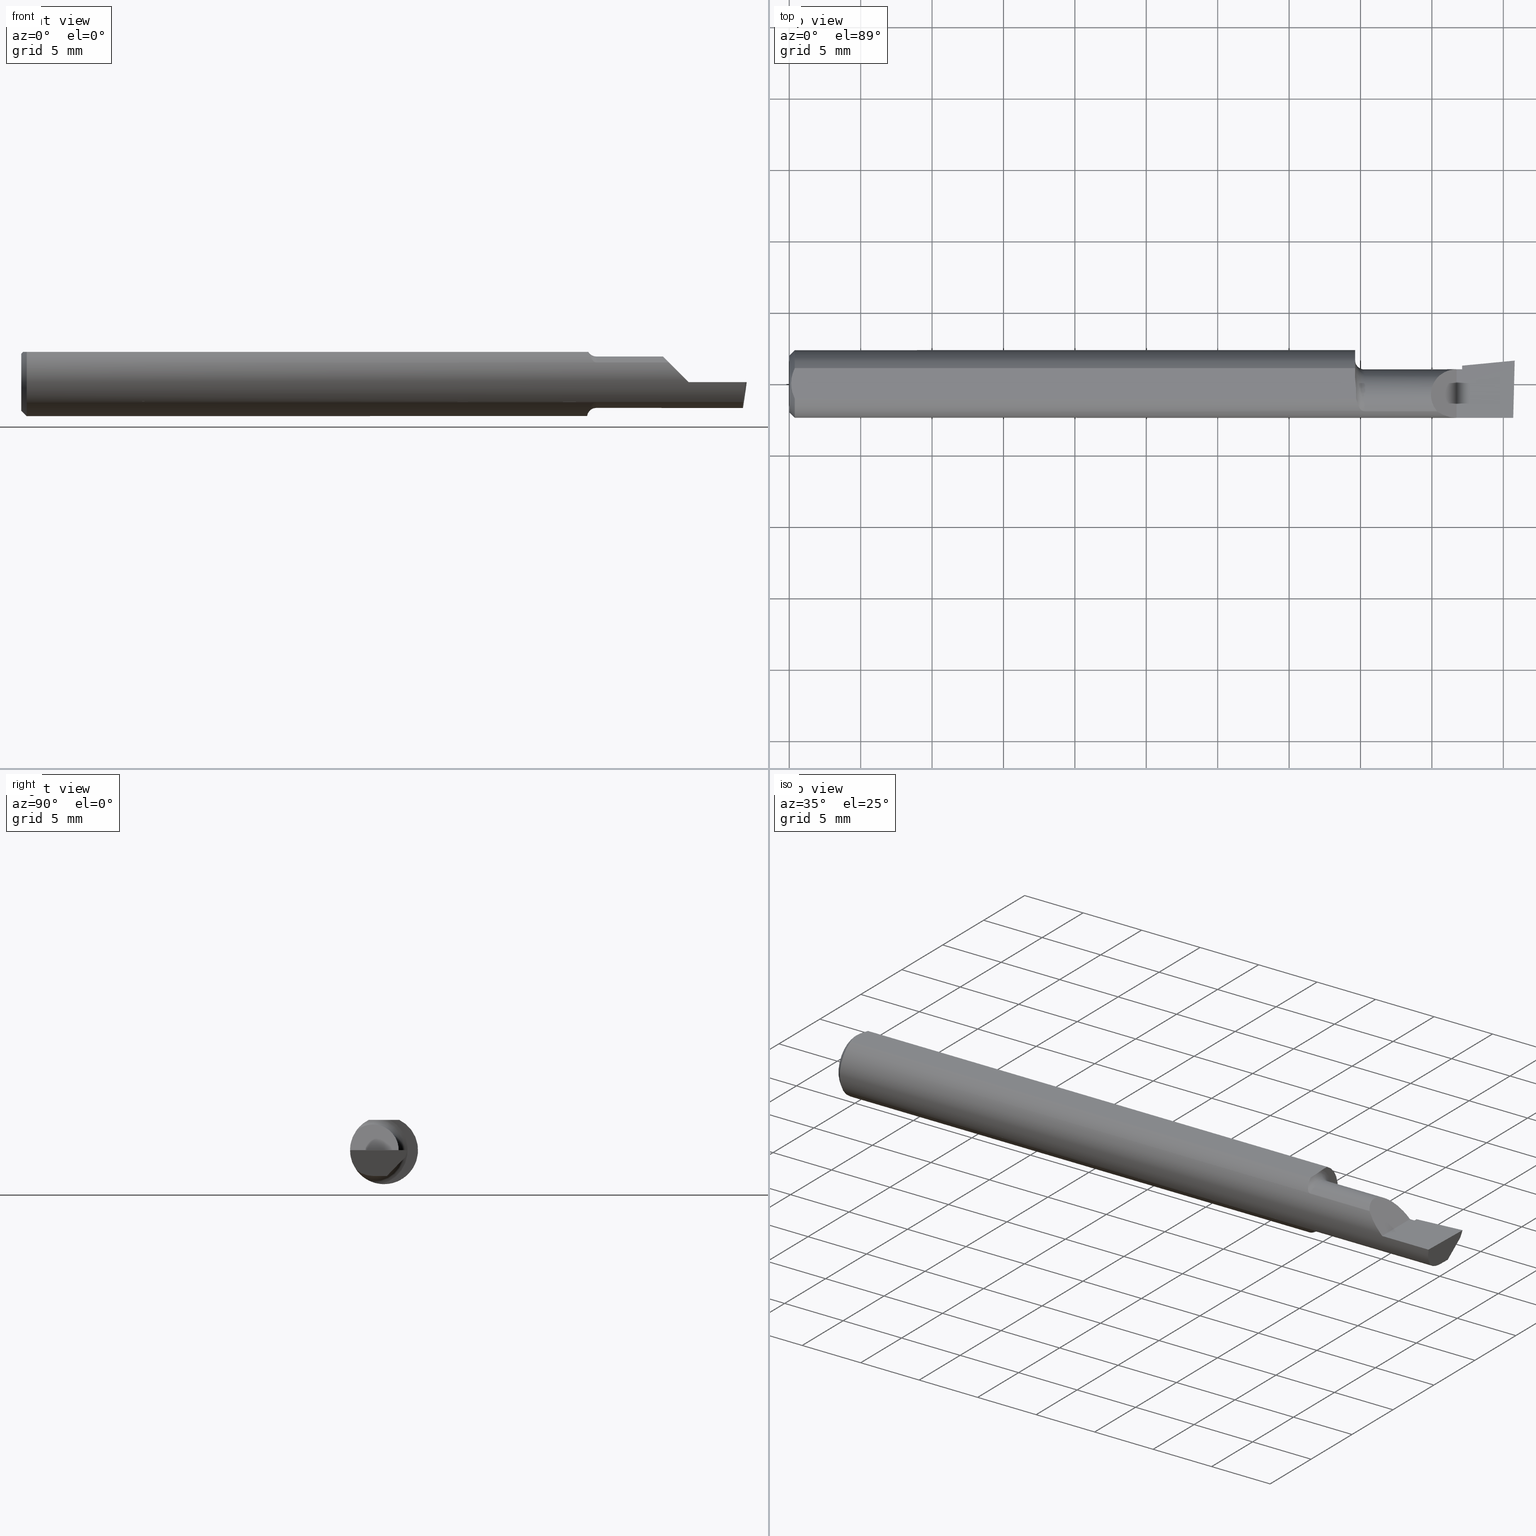
[diagram: canonical four-view strip — front | top / right | iso, engineering-drawing reading convention]
A machine part, canonical four-view strip (front | top / right | iso — engineering-drawing reading convention). The complete STEP part file that produces these views, byte-faithful:
ISO-10303-21;
HEADER;
FILE_DESCRIPTION (( 'STEP AP203' ),
    '1' );
FILE_NAME ('217333-B160400.STEP',
    '2024-04-23T17:12:56',
    ( '' ),
    ( '' ),
    'SwSTEP 2.0',
    'SolidWorks 2022',
    '' );
FILE_SCHEMA (( 'CONFIG_CONTROL_DESIGN' ));
ENDSEC;

DATA;
#1 = FACE_OUTER_BOUND ( 'NONE', #57, .T. ) ;
#2 = CARTESIAN_POINT ( 'NONE',  ( 1.854999999999999982, -0.03060000000000022424, 0.000000000000000000 ) ) ;
#3 = EDGE_CURVE ( 'NONE', #610, #514, #179, .T. ) ;
#4 = VERTEX_POINT ( 'NONE', #325 ) ;
#5 = LINE ( 'NONE', #428, #269 ) ;
#6 = DIRECTION ( 'NONE',  ( -1.000000000000000000, -0.000000000000000000, -0.000000000000000000 ) ) ;
#7 = CC_DESIGN_PERSON_AND_ORGANIZATION_ASSIGNMENT ( #105, #100, ( #80 ) ) ;
#8 = AXIS2_PLACEMENT_3D ( 'NONE', #596, #549, #62 ) ;
#9 = COORDINATED_UNIVERSAL_TIME_OFFSET ( 8, 0, .BEHIND. ) ;
#10 = PERSON ( 'UNSPECIFIED', 'UNSPECIFIED', 'UNSPECIFIED', ('UNSPECIFIED'), ('UNSPECIFIED'), ('UNSPECIFIED') ) ;
#11 = CARTESIAN_POINT ( 'NONE',  ( 1.840000000000000080, 0.04039999999999989433, 1.959434878635762025E-17 ) ) ;
#12 = ADVANCED_FACE ( 'NONE', ( #523 ), #560, .T. ) ;
#13 =( NAMED_UNIT ( * ) SI_UNIT ( $, .STERADIAN. ) SOLID_ANGLE_UNIT ( ) );
#14 = FACE_OUTER_BOUND ( 'NONE', #354, .T. ) ;
#15 = ORIENTED_EDGE ( 'NONE', *, *, #455, .T. ) ;
#16 = ADVANCED_FACE ( 'NONE', ( #328 ), #369, .T. ) ;
#17 = CARTESIAN_POINT ( 'NONE',  ( 0.005975039161239527503, -0.01453776427033146371, 0.08359999999999996600 ) ) ;
#18 = EDGE_LOOP ( 'NONE', ( #312, #607 ) ) ;
#19 = CARTESIAN_POINT ( 'NONE',  ( 1.991772787678609324, -0.2497845628634190740, -6.377686106282058433E-17 ) ) ;
#20 = ORIENTED_EDGE ( 'NONE', *, *, #180, .F. ) ;
#21 = CARTESIAN_POINT ( 'NONE',  ( 1.854999999999999982, 0.05043808801135910014, 1.028711510114199084E-15 ) ) ;
#22 = EDGE_CURVE ( 'NONE', #503, #380, #521, .T. ) ;
#23 = ORIENTED_EDGE ( 'NONE', *, *, #368, .F. ) ;
#24 = DIRECTION ( 'NONE',  ( 0.9953961983671787417, 0.09584575252022466130, -5.467869873542577569E-16 ) ) ;
#25 = VERTEX_POINT ( 'NONE', #280 ) ;
#26 = CARTESIAN_POINT ( 'NONE',  ( 1.577524991500365292, -0.07354719313698328265, 0.05791404302443246138 ) ) ;
#27 = VECTOR ( 'NONE', #6, 39.37007874015748143 ) ;
#28 = CARTESIAN_POINT ( 'NONE',  ( 1.560000000000000053, 0.06539999999999997204, 0.000000000000000000 ) ) ;
#29 = DATE_AND_TIME ( #253, #603 ) ;
#30 = CARTESIAN_POINT ( 'NONE',  ( 1.572372878085588122, -0.06813570069660565554, -0.06426486695182659359 ) ) ;
#31 = EDGE_LOOP ( 'NONE', ( #617, #308, #176, #117, #277, #262 ) ) ;
#32 = EDGE_CURVE ( 'NONE', #598, #380, #322, .T. ) ;
#33 = CARTESIAN_POINT ( 'NONE',  ( 1.562798152027436771, -0.01771129213186550116, 0.08360000000000003539 ) ) ;
#34 = ORIENTED_EDGE ( 'NONE', *, *, #318, .F. ) ;
#35 = CARTESIAN_POINT ( 'NONE',  ( 1.559999999999999165, 0.006742283091807301301, 0.08360000000000003539 ) ) ;
#36 = VERTEX_POINT ( 'NONE', #202 ) ;
#37 = AXIS2_PLACEMENT_3D ( 'NONE', #146, #197, #537 ) ;
#38 = VECTOR ( 'NONE', #242, 39.37007874015748143 ) ;
#39 = PLANE ( 'NONE',  #351 ) ;
#40 = CARTESIAN_POINT ( 'NONE',  ( 1.988791645263412011, -0.03060000000000022424, -0.07100000000000021572 ) ) ;
#41 = DIRECTION ( 'NONE',  ( 0.02617694830786939167, 0.9996573249755573709, -4.246274422243602914E-17 ) ) ;
#42 = CARTESIAN_POINT ( 'NONE',  ( 1.995862624392068074, -0.09360000000000009979, -6.605666309584466665E-17 ) ) ;
#43 = CARTESIAN_POINT ( 'NONE',  ( 1.560000000000000053, 0.01659152466280376659, 0.08360000000000000764 ) ) ;
#44 = CARTESIAN_POINT ( 'NONE',  ( 0.000000000000000000, -0.03060000000000023118, 0.000000000000000000 ) ) ;
#45 = AXIS2_PLACEMENT_3D ( 'NONE', #339, #384, #578 ) ;
#46 = DIRECTION ( 'NONE',  ( 1.000000000000000000, 4.268512490100411279E-18, 0.000000000000000000 ) ) ;
#47 = CARTESIAN_POINT ( 'NONE',  ( 1.785481776797905207, -0.07608366013071832246, 0.05451822320209408906 ) ) ;
#48 = DIRECTION ( 'NONE',  ( 1.000000000000000000, 0.000000000000000000, 0.000000000000000000 ) ) ;
#49 = ADVANCED_FACE ( 'NONE', ( #442 ), #190, .F. ) ;
#50 = CARTESIAN_POINT ( 'NONE',  ( 1.584999999999999964, -0.03060000000000022424, 0.000000000000000000 ) ) ;
#51 = ORIENTED_EDGE ( 'NONE', *, *, #93, .F. ) ;
#52 = CARTESIAN_POINT ( 'NONE',  ( 1.560000000000000053, 0.000000000000000000, 0.000000000000000000 ) ) ;
#53 = DIRECTION ( 'NONE',  ( 0.000000000000000000, -1.000000000000000000, 0.000000000000000000 ) ) ;
#54 = ORIENTED_EDGE ( 'NONE', *, *, #414, .F. ) ;
#55 = VECTOR ( 'NONE', #24, 39.37007874015748143 ) ;
#56 = CARTESIAN_POINT ( 'NONE',  ( 0.009539353699420834165, -0.02875682547511369813, 0.08360000000000003539 ) ) ;
#57 = EDGE_LOOP ( 'NONE', ( #205, #144 ) ) ;
#58 = CC_DESIGN_PERSON_AND_ORGANIZATION_ASSIGNMENT ( #108, #494, ( #80 ) ) ;
#59 = CARTESIAN_POINT ( 'NONE',  ( 2.000000000000004441, 0.06440000000001341873, 4.273634705088531894E-14 ) ) ;
#60 = VERTEX_POINT ( 'NONE', #483 ) ;
#61 = APPROVAL_STATUS ( 'not_yet_approved' ) ;
#62 = DIRECTION ( 'NONE',  ( 4.268512490100411279E-18, -1.000000000000000000, 0.000000000000000000 ) ) ;
#63 = ORIENTED_EDGE ( 'NONE', *, *, #252, .F. ) ;
#64 = VECTOR ( 'NONE', #431, 39.37007874015748143 ) ;
#65 = EDGE_CURVE ( 'NONE', #401, #500, #538, .T. ) ;
#66 = PLANE ( 'NONE',  #8 ) ;
#67 = ORIENTED_EDGE ( 'NONE', *, *, #275, .F. ) ;
#68 = LINE ( 'NONE', #457, #55 ) ;
#69 = EDGE_CURVE ( 'NONE', #456, #25, #239, .T. ) ;
#70 = VERTEX_POINT ( 'NONE', #11 ) ;
#71 = CARTESIAN_POINT ( 'NONE',  ( 1.584999999999999964, -0.07608366013071794776, 0.05451822320209439438 ) ) ;
#72 = CARTESIAN_POINT ( 'NONE',  ( 1.988641161029047311, -0.06318680184005830147, -0.06527786071030769466 ) ) ;
#73 = APPROVAL_DATE_TIME ( #156, #231 ) ;
#74 = CARTESIAN_POINT ( 'NONE',  ( 1.854999999999999982, 0.04429519371539571149, -0.02000000000000000042 ) ) ;
#75 = CIRCLE ( 'NONE', #168, 0.09360000000000001652 ) ;
#76 = CARTESIAN_POINT ( 'NONE',  ( 1.572718485147075684, -0.06880529263944749896, 0.06356579742164542024 ) ) ;
#77 = ORIENTED_EDGE ( 'NONE', *, *, #358, .T. ) ;
#78 = DIRECTION ( 'NONE',  ( -1.000000000000000000, -0.000000000000000000, -0.000000000000000000 ) ) ;
#79 = CARTESIAN_POINT ( 'NONE',  ( 0.000000000000000000, 0.000000000000000000, 0.000000000000000000 ) ) ;
#80 = PRODUCT_DEFINITION_FORMATION_WITH_SPECIFIED_SOURCE ( 'ANY', '', #562, .NOT_KNOWN. ) ;
#81 = CARTESIAN_POINT ( 'NONE',  ( 1.563154437539956199, -0.02258334521707493561, 0.08360000000000000764 ) ) ;
#82 = ORIENTED_EDGE ( 'NONE', *, *, #583, .F. ) ;
#83 = AXIS2_PLACEMENT_3D ( 'NONE', #232, #118, #173 ) ;
#84 = VECTOR ( 'NONE', #590, 39.37007874015748143 ) ;
#85 = LINE ( 'NONE', #333, #528 ) ;
#86 = CARTESIAN_POINT ( 'NONE',  ( 2.000000000000000000, -0.2500000000000000555, -6.829619984160658046E-17 ) ) ;
#87 = DIRECTION ( 'NONE',  ( 4.268512490100411279E-18, -1.000000000000000000, 0.000000000000000000 ) ) ;
#88 = DIRECTION ( 'NONE',  ( 0.000000000000000000, 1.000000000000000000, -4.268512490100411895E-17 ) ) ;
#89 = EDGE_LOOP ( 'NONE', ( #446, #416, #223, #452 ) ) ;
#90 = EDGE_CURVE ( 'NONE', #493, #36, #423, .T. ) ;
#91 = CARTESIAN_POINT ( 'NONE',  ( 1.989797099917948842, 0.007796764149783521822, -0.07100000000000021572 ) ) ;
#92 = LINE ( 'NONE', #244, #84 ) ;
#93 = EDGE_CURVE ( 'NONE', #102, #619, #448, .T. ) ;
#94 = CARTESIAN_POINT ( 'NONE',  ( 0.005000000000000237761, 1.025183009042025117E-17, 0.08360000000000000764 ) ) ;
#95 = DIRECTION ( 'NONE',  ( 0.1240019227989323375, 0.3022330132596648400, 0.9451342385281314984 ) ) ;
#96 = DIRECTION ( 'NONE',  ( 0.000000000000000000, 1.000000000000000000, 0.000000000000000000 ) ) ;
#97 = LINE ( 'NONE', #294, #476 ) ;
#98 = ORIENTED_EDGE ( 'NONE', *, *, #338, .F. ) ;
#99 = LOCAL_TIME ( 10, 12, 56.00000000000000000, #9 ) ;
#100 = PERSON_AND_ORGANIZATION_ROLE ( 'creator' ) ;
#101 = DIRECTION ( 'NONE',  ( 0.000000000000000000, -1.189000693621284344E-16, -1.000000000000000000 ) ) ;
#102 = VERTEX_POINT ( 'NONE', #429 ) ;
#103 = CIRCLE ( 'NONE', #240, 0.09360000000000001652 ) ;
#104 = AXIS2_PLACEMENT_3D ( 'NONE', #204, #113, #407 ) ;
#105 = PERSON_AND_ORGANIZATION ( #10, #133 ) ;
#106 = CARTESIAN_POINT ( 'NONE',  ( 5.659797890829555466E-31, -0.09359999999999998876, 1.030335658007946046E-15 ) ) ;
#107 = ORIENTED_EDGE ( 'NONE', *, *, #455, .F. ) ;
#108 = PERSON_AND_ORGANIZATION ( #10, #133 ) ;
#109 = LINE ( 'NONE', #399, #556 ) ;
#110 = EDGE_LOOP ( 'NONE', ( #114, #122, #600, #82, #554, #420, #605, #245, #468, #288, #54, #411 ) ) ;
#111 = EDGE_CURVE ( 'NONE', #60, #610, #198, .T. ) ;
#112 = DIRECTION ( 'NONE',  ( 0.000000000000000000, 0.000000000000000000, 1.000000000000000000 ) ) ;
#113 = DIRECTION ( 'NONE',  ( -0.7071067811865433539, 0.000000000000000000, -0.7071067811865516806 ) ) ;
#114 = ORIENTED_EDGE ( 'NONE', *, *, #32, .F. ) ;
#115 = APPROVAL ( #498, 'UNSPECIFIED' ) ;
#116 = FACE_OUTER_BOUND ( 'NONE', #570, .T. ) ;
#117 = ORIENTED_EDGE ( 'NONE', *, *, #69, .F. ) ;
#118 = DIRECTION ( 'NONE',  ( -1.000000000000000000, -4.268512490100411279E-18, -0.000000000000000000 ) ) ;
#119 = EDGE_CURVE ( 'NONE', #602, #612, #92, .T. ) ;
#120 = ORIENTED_EDGE ( 'NONE', *, *, #389, .T. ) ;
#121 = LINE ( 'NONE', #567, #462 ) ;
#122 = ORIENTED_EDGE ( 'NONE', *, *, #310, .T. ) ;
#123 = DIRECTION ( 'NONE',  ( 1.000000000000000000, 0.000000000000000000, 0.000000000000000000 ) ) ;
#124 = UNCERTAINTY_MEASURE_WITH_UNIT (LENGTH_MEASURE( 1.000000000000000082E-05 ), #501, 'distance_accuracy_value', 'NONE');
#125 = CARTESIAN_POINT ( 'NONE',  ( 1.563209978243261578, -0.03721340473516416419, 0.08360000000000000764 ) ) ;
#126 = AXIS2_PLACEMENT_3D ( 'NONE', #86, #394, #143 ) ;
#127 = ORIENTED_EDGE ( 'NONE', *, *, #158, .F. ) ;
#128 = CALENDAR_DATE ( 2024, 23, 4 ) ;
#129 = CARTESIAN_POINT ( 'NONE',  ( 1.566007506249286640, -0.05524264031795306923, -0.07589747771031254975 ) ) ;
#130 = DIRECTION ( 'NONE',  ( 0.9953961983671800740, 0.09584575252021028391, -2.116984158397002112E-18 ) ) ;
#131 = DIRECTION ( 'NONE',  ( -4.268512490100411279E-18, 1.000000000000000000, 2.344761903626518103E-33 ) ) ;
#132 = DIRECTION ( 'NONE',  ( 0.000000000000000000, 0.000000000000000000, 1.000000000000000000 ) ) ;
#133 = ORGANIZATION ( 'UNSPECIFIED', 'UNSPECIFIED', '' ) ;
#134 = DIRECTION ( 'NONE',  ( 0.000000000000000000, 0.000000000000000000, -1.000000000000000000 ) ) ;
#135 = DIRECTION ( 'NONE',  ( 1.000000000000000000, 4.268512490100411279E-18, 0.000000000000000000 ) ) ;
#136 = VECTOR ( 'NONE', #526, 39.37007874015748143 ) ;
#137 = AXIS2_PLACEMENT_3D ( 'NONE', #502, #258, #546 ) ;
#138 = DIRECTION ( 'NONE',  ( -1.000000000000000000, -0.000000000000000000, -0.000000000000000000 ) ) ;
#139 = CARTESIAN_POINT ( 'NONE',  ( 1.989625015145392917, -0.07608366013071821143, -0.05451822320209420702 ) ) ;
#140 = ADVANCED_FACE ( 'NONE', ( #331 ), #287, .F. ) ;
#141 = ORIENTED_EDGE ( 'NONE', *, *, #234, .T. ) ;
#142 = DIRECTION ( 'NONE',  ( -1.000000000000000000, -4.268512490100411279E-18, 0.000000000000000000 ) ) ;
#143 = DIRECTION ( 'NONE',  ( -1.000000000000000000, 0.000000000000000000, 5.493159289247764363E-16 ) ) ;
#144 = ORIENTED_EDGE ( 'NONE', *, *, #551, .T. ) ;
#145 = ADVANCED_FACE ( 'NONE', ( #531 ), #343, .T. ) ;
#146 = CARTESIAN_POINT ( 'NONE',  ( 0.000000000000000000, 0.000000000000000000, 0.000000000000000000 ) ) ;
#147 = CARTESIAN_POINT ( 'NONE',  ( 0.005000000000000237761, 1.025183009042025117E-17, 0.08360000000000000764 ) ) ;
#148 = AXIS2_PLACEMENT_3D ( 'NONE', #530, #48, #134 ) ;
#149 = CIRCLE ( 'NONE', #507, 0.07100000000000017408 ) ;
#150 = CARTESIAN_POINT ( 'NONE',  ( 1.854999999999999982, 0.05043808801135670622, 0.000000000000000000 ) ) ;
#151 = ORIENTED_EDGE ( 'NONE', *, *, #163, .T. ) ;
#152 = DIRECTION ( 'NONE',  ( -1.000000000000000000, 5.691349986800549142E-18, -0.000000000000000000 ) ) ;
#153 = CARTESIAN_POINT ( 'NONE',  ( 0.000000000000000000, 0.000000000000000000, 0.000000000000000000 ) ) ;
#154 = CARTESIAN_POINT ( 'NONE',  ( -3.030643867965640675E-19, 0.04039999999999995678, 1.030335658007946046E-15 ) ) ;
#155 = ORIENTED_EDGE ( 'NONE', *, *, #583, .T. ) ;
#156 = DATE_AND_TIME ( #398, #379 ) ;
#157 = CARTESIAN_POINT ( 'NONE',  ( 0.005000000000000228220, -0.007328888879231051229, 0.08359999999999999376 ) ) ;
#158 = EDGE_CURVE ( 'NONE', #25, #60, #260, .T. ) ;
#159 = VERTEX_POINT ( 'NONE', #247 ) ;
#160 = PERSON_AND_ORGANIZATION ( #10, #133 ) ;
#161 = LINE ( 'NONE', #263, #169 ) ;
#162 = ORIENTED_EDGE ( 'NONE', *, *, #293, .T. ) ;
#163 = EDGE_CURVE ( 'NONE', #471, #602, #576, .T. ) ;
#164 = CC_DESIGN_SECURITY_CLASSIFICATION ( #187, ( #80 ) ) ;
#165 = DIRECTION ( 'NONE',  ( -1.000000000000000000, -0.000000000000000000, -0.000000000000000000 ) ) ;
#166 = ORIENTED_EDGE ( 'NONE', *, *, #32, .T. ) ;
#167 = PRODUCT_DEFINITION_SHAPE ( 'NONE', 'NONE',  #341 ) ;
#168 = AXIS2_PLACEMENT_3D ( 'NONE', #284, #138, #581 ) ;
#169 = VECTOR ( 'NONE', #152, 39.37007874015748143 ) ;
#170 = CARTESIAN_POINT ( 'NONE',  ( 1.854999999999999982, 0.05043808801135670622, 0.000000000000000000 ) ) ;
#171 = ORIENTED_EDGE ( 'NONE', *, *, #414, .T. ) ;
#172 = CC_DESIGN_PERSON_AND_ORGANIZATION_ASSIGNMENT ( #344, #209, ( #562 ) ) ;
#173 = DIRECTION ( 'NONE',  ( 4.268512490100411279E-18, -1.000000000000000000, 0.000000000000000000 ) ) ;
#174 = ORIENTED_EDGE ( 'NONE', *, *, #180, .T. ) ;
#175 = DIRECTION ( 'NONE',  ( -1.000000000000000000, -0.000000000000000000, -0.000000000000000000 ) ) ;
#176 = ORIENTED_EDGE ( 'NONE', *, *, #188, .F. ) ;
#177 = MANIFOLD_SOLID_BREP ( 'Extrude7', #229 ) ;
#178 = DIRECTION ( 'NONE',  ( -1.000000000000000000, -4.268512490100411279E-18, -0.000000000000000000 ) ) ;
#179 = LINE ( 'NONE', #566, #300 ) ;
#180 = EDGE_CURVE ( 'NONE', #563, #212, #486, .T. ) ;
#181 = SHAPE_DEFINITION_REPRESENTATION ( #167, #213 ) ;
#182 = CARTESIAN_POINT ( 'NONE',  ( 0.01499999999999999771, 0.000000000000000000, -0.09360000000000001652 ) ) ;
#183 = DIRECTION ( 'NONE',  ( -1.000000000000000000, -0.000000000000000000, -0.000000000000000000 ) ) ;
#184 = EDGE_CURVE ( 'NONE', #4, #271, #149, .T. ) ;
#185 = CARTESIAN_POINT ( 'NONE',  ( 1.988799325593724632, -0.03030670001847553252, -0.07100000000000021572 ) ) ;
#186 = EDGE_LOOP ( 'NONE', ( #593, #508, #406, #408, #67, #314 ) ) ;
#187 = SECURITY_CLASSIFICATION ( '', '', #256 ) ;
#188 = EDGE_CURVE ( 'NONE', #25, #610, #97, .T. ) ;
#189 = CARTESIAN_POINT ( 'NONE',  ( 1.770398118553869304, 0.04039999999999996372, 0.06960188144613037309 ) ) ;
#190 = PLANE ( 'NONE',  #126 ) ;
#191 = AXIS2_PLACEMENT_3D ( 'NONE', #558, #78, #419 ) ;
#192 = CARTESIAN_POINT ( 'NONE',  ( 1.854999999999999982, 0.03291555154404722516, -0.03172971339384390160 ) ) ;
#193 = DIRECTION ( 'NONE',  ( -1.000000000000000000, -4.268512490100411279E-18, -0.000000000000000000 ) ) ;
#194 = ORIENTED_EDGE ( 'NONE', *, *, #252, .T. ) ;
#195 = PLANE ( 'NONE',  #37 ) ;
#196 = CARTESIAN_POINT ( 'NONE',  ( 1.991292915001084296, -0.08756847698997995144, -0.03849042825095487508 ) ) ;
#197 = DIRECTION ( 'NONE',  ( 1.000000000000000000, 0.000000000000000000, 0.000000000000000000 ) ) ;
#198 = LINE ( 'NONE', #334, #443 ) ;
#199 = AXIS2_PLACEMENT_3D ( 'NONE', #438, #539, #330 ) ;
#200 = EDGE_CURVE ( 'NONE', #371, #456, #109, .T. ) ;
#201 = CALENDAR_DATE ( 2024, 23, 4 ) ;
#202 = CARTESIAN_POINT ( 'NONE',  ( 1.560000000000000053, -0.007864705882352510113, -0.09326900021649256467 ) ) ;
#203 = PERSON_AND_ORGANIZATION ( #10, #133 ) ;
#204 = CARTESIAN_POINT ( 'NONE',  ( 1.840000000000000080, -0.2500000000000000555, 1.959434878635762025E-17 ) ) ;
#205 = ORIENTED_EDGE ( 'NONE', *, *, #368, .T. ) ;
#206 = ADVANCED_FACE ( 'NONE', ( #254 ), #66, .T. ) ;
#207 = PLANE ( 'NONE',  #104 ) ;
#208 = ORIENTED_EDGE ( 'NONE', *, *, #591, .T. ) ;
#209 = PERSON_AND_ORGANIZATION_ROLE ( 'design_owner' ) ;
#210 = DIRECTION ( 'NONE',  ( -0.02617694830786939167, -0.9996573249755573709, 1.459184416195897376E-17 ) ) ;
#211 = ADVANCED_FACE ( 'NONE', ( #304 ), #592, .F. ) ;
#212 = VERTEX_POINT ( 'NONE', #59 ) ;
#213 = ADVANCED_BREP_SHAPE_REPRESENTATION ( '217333-B160400', ( #177, #327 ), #295 ) ;
#214 = CARTESIAN_POINT ( 'NONE',  ( 1.840000000000000080, -0.2500000000000000555, 1.959434878635762025E-17 ) ) ;
#215 = ORIENTED_EDGE ( 'NONE', *, *, #65, .F. ) ;
#216 = LINE ( 'NONE', #297, #515 ) ;
#217 = EDGE_LOOP ( 'NONE', ( #267, #162, #510 ) ) ;
#218 = AXIS2_PLACEMENT_3D ( 'NONE', #473, #273, #470 ) ;
#219 = CARTESIAN_POINT ( 'NONE',  ( 1.581360941731893899, -0.07557034852506690215, -0.05524018594043181990 ) ) ;
#220 = VERTEX_POINT ( 'NONE', #21 ) ;
#221 = DATE_TIME_ROLE ( 'classification_date' ) ;
#222 = CARTESIAN_POINT ( 'NONE',  ( 1.568052623108272314, -0.06089616178095298704, -0.07140423527607867027 ) ) ;
#223 = ORIENTED_EDGE ( 'NONE', *, *, #298, .F. ) ;
#224 = CARTESIAN_POINT ( 'NONE',  ( 1.580753778368558793, -0.07537148234687023052, 0.05551905660761868172 ) ) ;
#225 = ADVANCED_FACE ( 'NONE', ( #116 ), #509, .F. ) ;
#226 = ORIENTED_EDGE ( 'NONE', *, *, #564, .T. ) ;
#227 = APPROVAL_DATE_TIME ( #469, #418 ) ;
#228 = CARTESIAN_POINT ( 'NONE',  ( 1.562861144841092953, -0.04209513036041401951, 0.08360000000000000764 ) ) ;
#229 = CLOSED_SHELL ( 'NONE', ( #481, #12, #49, #145, #140, #225, #613, #450, #211, #289, #609, #474, #430, #16, #206, #504, #405 ) ) ;
#230 = ORIENTED_EDGE ( 'NONE', *, *, #532, .T. ) ;
#231 = APPROVAL ( #61, 'UNSPECIFIED' ) ;
#232 = CARTESIAN_POINT ( 'NONE',  ( 1.584999999999999964, -0.03060000000000023118, 0.000000000000000000 ) ) ;
#233 = ORIENTED_EDGE ( 'NONE', *, *, #234, .F. ) ;
#234 = EDGE_CURVE ( 'NONE', #500, #471, #479, .T. ) ;
#235 = FACE_OUTER_BOUND ( 'NONE', #475, .T. ) ;
#236 = DIRECTION ( 'NONE',  ( -1.000000000000000000, -4.268512490100411279E-18, -0.000000000000000000 ) ) ;
#237 = EDGE_CURVE ( 'NONE', #212, #598, #250, .T. ) ;
#238 = DIRECTION ( 'NONE',  ( 1.000000000000000000, 4.268512490100411279E-18, 0.000000000000000000 ) ) ;
#239 = LINE ( 'NONE', #282, #38 ) ;
#240 = AXIS2_PLACEMENT_3D ( 'NONE', #348, #175, #513 ) ;
#241 = CARTESIAN_POINT ( 'NONE',  ( 1.995862624392068074, -0.09360000000000009979, -6.605666309584466665E-17 ) ) ;
#242 = DIRECTION ( 'NONE',  ( 2.972230601656782806E-18, -0.6963153109074924352, -0.7177360153954949196 ) ) ;
#243 = CARTESIAN_POINT ( 'NONE',  ( 1.854999999999999982, 0.04039999999999999841, 1.030335658007946440E-15 ) ) ;
#244 = CARTESIAN_POINT ( 'NONE',  ( 0.000000000000000000, 0.04209513035969837669, 0.08360000000000000764 ) ) ;
#245 = ORIENTED_EDGE ( 'NONE', *, *, #349, .F. ) ;
#246 = LENGTH_MEASURE_WITH_UNIT ( LENGTH_MEASURE( 0.02539999999999999897 ), #417 );
#247 = CARTESIAN_POINT ( 'NONE',  ( 0.000000000000000000, 0.000000000000000000, -0.07859999999999965625 ) ) ;
#248 = ORIENTED_EDGE ( 'NONE', *, *, #22, .F. ) ;
#249 = AXIS2_PLACEMENT_3D ( 'NONE', #426, #569, #296 ) ;
#250 = LINE ( 'NONE', #19, #362 ) ;
#251 = ORIENTED_EDGE ( 'NONE', *, *, #3, .T. ) ;
#252 = EDGE_CURVE ( 'NONE', #503, #60, #161, .T. ) ;
#253 = CALENDAR_DATE ( 2024, 23, 4 ) ;
#254 = FACE_OUTER_BOUND ( 'NONE', #89, .T. ) ;
#255 = ORIENTED_EDGE ( 'NONE', *, *, #184, .T. ) ;
#256 = SECURITY_CLASSIFICATION_LEVEL ( 'unclassified' ) ;
#257 = EDGE_CURVE ( 'NONE', #70, #577, #356, .T. ) ;
#258 = DIRECTION ( 'NONE',  ( 0.09165774897393337561, -0.9519021185660612172, 0.2923717047227308297 ) ) ;
#259 = ORIENTED_EDGE ( 'NONE', *, *, #188, .T. ) ;
#260 = CIRCLE ( 'NONE', #614, 0.07100000000000021572 ) ;
#261 = DIRECTION ( 'NONE',  ( 0.000000000000000000, 1.000000000000000000, -1.189000693621284344E-16 ) ) ;
#262 = ORIENTED_EDGE ( 'NONE', *, *, #435, .T. ) ;
#263 = CARTESIAN_POINT ( 'NONE',  ( 2.000000000000000000, -0.03060000000000022424, -0.07100000000000021572 ) ) ;
#264 = ORIENTED_EDGE ( 'NONE', *, *, #158, .T. ) ;
#265 = LOCAL_TIME ( 10, 12, 56.00000000000000000, #268 ) ;
#266 = CARTESIAN_POINT ( 'NONE',  ( 1.561750924354898817, -0.03635445752162090594, -0.08656092162675024793 ) ) ;
#267 = ORIENTED_EDGE ( 'NONE', *, *, #520, .T. ) ;
#268 = COORDINATED_UNIVERSAL_TIME_OFFSET ( 8, 0, .BEHIND. ) ;
#269 = VECTOR ( 'NONE', #238, 39.37007874015748143 ) ;
#270 = CARTESIAN_POINT ( 'NONE',  ( 1.989625015145392917, -0.07608366013071821143, -0.05451822320209420702 ) ) ;
#271 = VERTEX_POINT ( 'NONE', #396 ) ;
#272 = APPROVAL_ROLE ( '' ) ;
#273 = DIRECTION ( 'NONE',  ( 0.9922060308645480609, -0.02598182930468958748, -0.1218693434051461438 ) ) ;
#274 = ORIENTED_EDGE ( 'NONE', *, *, #111, .T. ) ;
#275 = EDGE_CURVE ( 'NONE', #102, #70, #553, .T. ) ;
#276 = CARTESIAN_POINT ( 'NONE',  ( 1.563362255574652693, -0.03233437538769841357, 0.08360000000000003539 ) ) ;
#277 = ORIENTED_EDGE ( 'NONE', *, *, #200, .F. ) ;
#278 = LINE ( 'NONE', #376, #136 ) ;
#279 = AXIS2_PLACEMENT_3D ( 'NONE', #534, #480, #53 ) ;
#280 = CARTESIAN_POINT ( 'NONE',  ( 1.854999999999999982, 0.003039038829300824175, -0.06252531540616809713 ) ) ;
#281 = CARTESIAN_POINT ( 'NONE',  ( 1.997375993425186458, 0.05800444260848394012, -0.01999999999999999001 ) ) ;
#282 = CARTESIAN_POINT ( 'NONE',  ( 1.854999999999999982, 0.02466814268713793043, -0.04023083677511909290 ) ) ;
#283 = CC_DESIGN_DATE_AND_TIME_ASSIGNMENT ( #541, #544, ( #341 ) ) ;
#284 = CARTESIAN_POINT ( 'NONE',  ( 0.01499999999999999771, 0.000000000000000000, 0.000000000000000000 ) ) ;
#285 = CARTESIAN_POINT ( 'NONE',  ( 2.000000000000000000, -0.03060000000000022424, -0.07100000000000021572 ) ) ;
#286 = DIRECTION ( 'NONE',  ( 0.7071067811865391350, 8.659560562355035164E-17, 0.7071067811865558994 ) ) ;
#287 = PLANE ( 'NONE',  #585 ) ;
#288 = ORIENTED_EDGE ( 'NONE', *, *, #520, .F. ) ;
#289 = ADVANCED_FACE ( 'NONE', ( #14 ), #207, .F. ) ;
#290 = CARTESIAN_POINT ( 'NONE',  ( 0.01500000000000000291, -0.04209513035969835587, 0.08360000000000000764 ) ) ;
#291 = DIRECTION ( 'NONE',  ( 0.000000000000000000, -1.000000000000000000, 0.000000000000000000 ) ) ;
#292 = FACE_OUTER_BOUND ( 'NONE', #31, .T. ) ;
#293 = EDGE_CURVE ( 'NONE', #612, #493, #447, .T. ) ;
#294 = CARTESIAN_POINT ( 'NONE',  ( 1.854999999999999982, 0.02466814268713793043, -0.04023083677511909290 ) ) ;
#295 =( GEOMETRIC_REPRESENTATION_CONTEXT ( 3 ) GLOBAL_UNCERTAINTY_ASSIGNED_CONTEXT ( ( #124 ) ) GLOBAL_UNIT_ASSIGNED_CONTEXT ( ( #501, #589, #13 ) ) REPRESENTATION_CONTEXT ( 'NONE', 'WORKASPACE' ) );
#296 = DIRECTION ( 'NONE',  ( 0.000000000000000000, -0.6963153109074924352, -0.7177360153954949196 ) ) ;
#297 = CARTESIAN_POINT ( 'NONE',  ( 0.01499999999999999771, 0.000000000000000000, -0.09360000000000001652 ) ) ;
#298 = EDGE_CURVE ( 'NONE', #577, #456, #361, .T. ) ;
#299 = TOROIDAL_SURFACE ( 'NONE', #83, 0.09600000000000019629, 0.02499999999999994241 ) ;
#300 = VECTOR ( 'NONE', #130, 39.37007874015748854 ) ;
#301 = COORDINATED_UNIVERSAL_TIME_OFFSET ( 8, 0, .BEHIND. ) ;
#302 = CARTESIAN_POINT ( 'NONE',  ( 1.854999999999999982, -0.03060000000000022424, 0.000000000000000000 ) ) ;
#303 = VERTEX_POINT ( 'NONE', #307 ) ;
#304 = FACE_OUTER_BOUND ( 'NONE', #588, .T. ) ;
#305 = ORIENTED_EDGE ( 'NONE', *, *, #363, .T. ) ;
#306 = APPLICATION_PROTOCOL_DEFINITION ( 'international standard', 'config_control_design', 1994, #332 ) ;
#307 = CARTESIAN_POINT ( 'NONE',  ( 0.000000000000000000, 1.054420894065869177E-17, 0.07859999999999965625 ) ) ;
#308 = ORIENTED_EDGE ( 'NONE', *, *, #3, .F. ) ;
#309 = CIRCLE ( 'NONE', #506, 0.07100000000000020184 ) ;
#310 = EDGE_CURVE ( 'NONE', #598, #102, #359, .T. ) ;
#311 = CARTESIAN_POINT ( 'NONE',  ( 1.854999999999999982, 0.04694360585384953211, -0.01137731495658560188 ) ) ;
#312 = ORIENTED_EDGE ( 'NONE', *, *, #597, .T. ) ;
#313 = CARTESIAN_POINT ( 'NONE',  ( 1.719999999999999973, -0.07608366013071821143, -0.05451822320209420702 ) ) ;
#314 = ORIENTED_EDGE ( 'NONE', *, *, #310, .F. ) ;
#315 = CARTESIAN_POINT ( 'NONE',  ( 1.562861144841092953, -0.04209513036041401951, 0.08360000000000000764 ) ) ;
#316 = B_SPLINE_CURVE_WITH_KNOTS ( 'NONE', 3,
 ( #374, #35, #561, #33, #81, #276, #125, #228 ),
 .UNSPECIFIED., .F., .F.,
 ( 4, 2, 2, 4 ),
 ( 0.009574067517472108907, 0.01031724332539393600, 0.01068883122935485042, 0.01106041913331576310 ),
 .UNSPECIFIED. ) ;
#317 = ORIENTED_EDGE ( 'NONE', *, *, #275, .T. ) ;
#318 = EDGE_CURVE ( 'NONE', #220, #371, #505, .T. ) ;
#319 = VECTOR ( 'NONE', #41, 39.37007874015748143 ) ;
#320 = CARTESIAN_POINT ( 'NONE',  ( 1.566341906786436811, -0.05682123740528498973, 0.07483672126184987006 ) ) ;
#321 = ORIENTED_EDGE ( 'NONE', *, *, #525, .T. ) ;
#322 =( BOUNDED_CURVE ( )  B_SPLINE_CURVE ( 3, ( #42, #436, #196, #139 ),
 .UNSPECIFIED., .F., .T. ) 
 B_SPLINE_CURVE_WITH_KNOTS ( ( 4, 4 ),
 ( 4.922438424664829171, 5.544189768309971456 ),
 .UNSPECIFIED. ) 
 CURVE ( )  GEOMETRIC_REPRESENTATION_ITEM ( )  RATIONAL_B_SPLINE_CURVE ( ( 1.000000000000000000, 0.9680440490283178656, 0.9680440490283178656, 1.000000000000000000 ) ) 
 REPRESENTATION_ITEM ( '' )  );
#323 = EDGE_CURVE ( 'NONE', #220, #212, #68, .T. ) ;
#324 = CARTESIAN_POINT ( 'NONE',  ( 1.560327566746672501, -0.02246933888146956590, -0.09115683487700426690 ) ) ;
#325 = CARTESIAN_POINT ( 'NONE',  ( 1.584999999999999964, -0.07608366013071794776, 0.05451822320209439438 ) ) ;
#326 = FACE_OUTER_BOUND ( 'NONE', #568, .T. ) ;
#327 = AXIS2_PLACEMENT_3D ( 'NONE', #153, #112, #123 ) ;
#328 = FACE_OUTER_BOUND ( 'NONE', #217, .T. ) ;
#329 = VECTOR ( 'NONE', #165, 39.37007874015748143 ) ;
#330 = DIRECTION ( 'NONE',  ( 0.000000000000000000, 0.000000000000000000, 1.000000000000000000 ) ) ;
#331 = FACE_OUTER_BOUND ( 'NONE', #437, .T. ) ;
#332 = APPLICATION_CONTEXT ( 'configuration controlled 3d designs of mechanical parts and assemblies' ) ;
#333 = CARTESIAN_POINT ( 'NONE',  ( 0.01499999999999999771, 1.146269404001922775E-17, 0.09360000000000001652 ) ) ;
#334 = CARTESIAN_POINT ( 'NONE',  ( 1.854999999999999982, -0.03060000000000022424, -0.07100000000000021572 ) ) ;
#335 = LINE ( 'NONE', #185, #319 ) ;
#336 = CARTESIAN_POINT ( 'NONE',  ( 0.01203648650249650870, 0.03550565407121124978, 0.08360000000000000764 ) ) ;
#337 = ORIENTED_EDGE ( 'NONE', *, *, #551, .F. ) ;
#338 = EDGE_CURVE ( 'NONE', #159, #433, #216, .T. ) ;
#339 = CARTESIAN_POINT ( 'NONE',  ( 0.01499999999999999771, 0.000000000000000000, 0.000000000000000000 ) ) ;
#340 = CARTESIAN_POINT ( 'NONE',  ( 1.989254605881537685, 0.03820997996013973663, -0.08190066459133928112 ) ) ;
#341 = PRODUCT_DEFINITION ( 'UNKNOWN', '', #80, #466 ) ;
#342 = DIRECTION ( 'NONE',  ( 1.000000000000000000, 4.268512490100411279E-18, 0.000000000000000000 ) ) ;
#343 = CYLINDRICAL_SURFACE ( 'NONE', #529, 0.07100000000000020184 ) ;
#344 = PERSON_AND_ORGANIZATION ( #10, #133 ) ;
#345 = DIRECTION ( 'NONE',  ( 1.000000000000000000, 4.268512490100411279E-18, 0.000000000000000000 ) ) ;
#346 = CC_DESIGN_APPROVAL ( #231, ( #341 ) ) ;
#347 = CALENDAR_DATE ( 2024, 23, 4 ) ;
#348 = CARTESIAN_POINT ( 'NONE',  ( 0.01499999999999999771, 0.000000000000000000, 0.000000000000000000 ) ) ;
#349 = EDGE_CURVE ( 'NONE', #602, #433, #103, .T. ) ;
#350 = ORIENTED_EDGE ( 'NONE', *, *, #349, .T. ) ;
#351 = AXIS2_PLACEMENT_3D ( 'NONE', #170, #364, #87 ) ;
#352 = APPROVAL_ROLE ( '' ) ;
#353 = DIRECTION ( 'NONE',  ( 0.000000000000000000, -1.000000000000000000, 0.000000000000000000 ) ) ;
#354 = EDGE_LOOP ( 'NONE', ( #461, #51, #317 ) ) ;
#355 = MECHANICAL_CONTEXT ( 'NONE', #366, 'mechanical' ) ;
#356 = LINE ( 'NONE', #154, #497 ) ;
#357 = ORIENTED_EDGE ( 'NONE', *, *, #90, .F. ) ;
#358 = EDGE_CURVE ( 'NONE', #380, #271, #370, .T. ) ;
#359 = LINE ( 'NONE', #106, #329 ) ;
#360 = ORIENTED_EDGE ( 'NONE', *, *, #119, .F. ) ;
#361 = CIRCLE ( 'NONE', #624, 0.07100000000000021572 ) ;
#362 = VECTOR ( 'NONE', #210, 39.37007874015748143 ) ;
#363 = EDGE_CURVE ( 'NONE', #493, #401, #316, .T. ) ;
#364 = DIRECTION ( 'NONE',  ( -1.000000000000000000, -4.268512490100411279E-18, 0.000000000000000000 ) ) ;
#365 = ORIENTED_EDGE ( 'NONE', *, *, #257, .T. ) ;
#366 = APPLICATION_CONTEXT ( 'configuration controlled 3d designs of mechanical parts and assemblies' ) ;
#367 = CARTESIAN_POINT ( 'NONE',  ( 1.562861144841092953, -0.04209513036041401951, 0.08360000000000000764 ) ) ;
#368 = EDGE_CURVE ( 'NONE', #159, #303, #571, .T. ) ;
#369 = PLANE ( 'NONE',  #400 ) ;
#370 = LINE ( 'NONE', #313, #584 ) ;
#371 = VERTEX_POINT ( 'NONE', #74 ) ;
#372 = CC_DESIGN_PERSON_AND_ORGANIZATION_ASSIGNMENT ( #440, #548, ( #341 ) ) ;
#373 = PERSON_AND_ORGANIZATION ( #10, #133 ) ;
#374 = CARTESIAN_POINT ( 'NONE',  ( 1.560000000000000053, 0.01659152466280376659, 0.08360000000000000764 ) ) ;
#375 = ORIENTED_EDGE ( 'NONE', *, *, #363, .F. ) ;
#376 = CARTESIAN_POINT ( 'NONE',  ( 1.434596552969581662, 0.003814945941878222693, -0.02000000000000000042 ) ) ;
#377 = ORIENTED_EDGE ( 'NONE', *, *, #184, .F. ) ;
#378 = PLANE ( 'NONE',  #402 ) ;
#379 = LOCAL_TIME ( 10, 12, 56.00000000000000000, #552 ) ;
#380 = VERTEX_POINT ( 'NONE', #270 ) ;
#381 = CARTESIAN_POINT ( 'NONE',  ( 1.987153287650113009, -0.009717623157798458214, -0.08879077981909574979 ) ) ;
#382 = AXIS2_PLACEMENT_3D ( 'NONE', #404, #101, #261 ) ;
#383 = CARTESIAN_POINT ( 'NONE',  ( 1.840000000000000080, -0.09360000000000005815, 1.959434878635762025E-17 ) ) ;
#384 = DIRECTION ( 'NONE',  ( 1.000000000000000000, 0.000000000000000000, 0.000000000000000000 ) ) ;
#385 = CARTESIAN_POINT ( 'NONE',  ( 0.005981829149300847866, 0.01454044632356568667, 0.08360000000000000764 ) ) ;
#386 = EDGE_CURVE ( 'NONE', #577, #220, #121, .T. ) ;
#387 = FACE_OUTER_BOUND ( 'NONE', #18, .T. ) ;
#388 = CARTESIAN_POINT ( 'NONE',  ( 0.005000000000000227353, 0.007308422719211826561, 0.08360000000000000764 ) ) ;
#389 = EDGE_CURVE ( 'NONE', #401, #4, #518, .T. ) ;
#390 = CARTESIAN_POINT ( 'NONE',  ( 1.854999999999999982, -0.005182720301102405197, -0.07100000000000021572 ) ) ;
#391 = CIRCLE ( 'NONE', #199, 0.07859999999999965625 ) ;
#392 = DIRECTION ( 'NONE',  ( -1.000000000000000000, -4.268512490100411279E-18, -0.000000000000000000 ) ) ;
#393 = APPROVAL_DATE_TIME ( #403, #115 ) ;
#394 = DIRECTION ( 'NONE',  ( -5.493159289247764363E-16, 0.000000000000000000, -1.000000000000000000 ) ) ;
#395 = CARTESIAN_POINT ( 'NONE',  ( 1.785481776797905207, -0.07608366013071832246, 0.05451822320209408906 ) ) ;
#396 = CARTESIAN_POINT ( 'NONE',  ( 1.584999999999999964, -0.07608366013071804490, -0.05451822320209432499 ) ) ;
#397 = ORIENTED_EDGE ( 'NONE', *, *, #298, .T. ) ;
#398 = CALENDAR_DATE ( 2024, 23, 4 ) ;
#399 = CARTESIAN_POINT ( 'NONE',  ( 1.854999999999999982, 0.02466814268713793043, -0.04023083677511909290 ) ) ;
#400 = AXIS2_PLACEMENT_3D ( 'NONE', #28, #135, #527 ) ;
#401 = VERTEX_POINT ( 'NONE', #367 ) ;
#402 = AXIS2_PLACEMENT_3D ( 'NONE', #150, #142, #535 ) ;
#403 = DATE_AND_TIME ( #201, #99 ) ;
#404 = CARTESIAN_POINT ( 'NONE',  ( 2.000000000000000000, 0.1436000000000000332, 0.08359999999999999376 ) ) ;
#405 = ADVANCED_FACE ( 'NONE', ( #326 ), #467, .T. ) ;
#406 = ORIENTED_EDGE ( 'NONE', *, *, #386, .F. ) ;
#407 = DIRECTION ( 'NONE',  ( -0.7071067811865516806, 0.000000000000000000, 0.7071067811865433539 ) ) ;
#408 = ORIENTED_EDGE ( 'NONE', *, *, #257, .F. ) ;
#409 = PRODUCT_RELATED_PRODUCT_CATEGORY ( 'detail', '', ( #562 ) ) ;
#410 = CARTESIAN_POINT ( 'NONE',  ( 0.005000000000000237761, 1.025183009042025117E-17, 0.08360000000000000764 ) ) ;
#411 = ORIENTED_EDGE ( 'NONE', *, *, #358, .F. ) ;
#412 = CONICAL_SURFACE ( 'NONE', #45, 0.09360000000000001652, 0.7853981633974601584 ) ;
#413 = AXIS2_PLACEMENT_3D ( 'NONE', #79, #183, #132 ) ;
#414 = EDGE_CURVE ( 'NONE', #271, #36, #453, .T. ) ;
#415 = CARTESIAN_POINT ( 'NONE',  ( 1.559999999999995612, -0.01523829271462590410, -0.09264723852076078847 ) ) ;
#416 = ORIENTED_EDGE ( 'NONE', *, *, #200, .T. ) ;
#417 =( LENGTH_UNIT ( ) NAMED_UNIT ( * ) SI_UNIT ( $, .METRE. ) );
#418 = APPROVAL ( #472, 'UNSPECIFIED' ) ;
#419 = DIRECTION ( 'NONE',  ( 0.000000000000000000, 0.000000000000000000, 1.000000000000000000 ) ) ;
#420 = ORIENTED_EDGE ( 'NONE', *, *, #65, .T. ) ;
#421 = CARTESIAN_POINT ( 'NONE',  ( 1.584999999999999964, -0.07608366013071804490, -0.05451822320209432499 ) ) ;
#422 = EDGE_LOOP ( 'NONE', ( #259, #559, #127 ) ) ;
#423 = CIRCLE ( 'NONE', #279, 0.09600000000000022404 ) ;
#424 = CARTESIAN_POINT ( 'NONE',  ( 1.583103322019917103, -0.07608366013071797551, -0.05451822320209449846 ) ) ;
#425 = ORIENTED_EDGE ( 'NONE', *, *, #597, .F. ) ;
#426 = CARTESIAN_POINT ( 'NONE',  ( 1.434596552969581662, 0.003814945941878222693, -0.02000000000000000042 ) ) ;
#427 = ORIENTED_EDGE ( 'NONE', *, *, #338, .T. ) ;
#428 = CARTESIAN_POINT ( 'NONE',  ( 1.719999999999999973, -0.07608366013071821143, 0.05451822320209420702 ) ) ;
#429 = CARTESIAN_POINT ( 'NONE',  ( 1.840000000000000080, -0.09360000000000005815, 1.959434878635762025E-17 ) ) ;
#430 = ADVANCED_FACE ( 'NONE', ( #522 ), #299, .F. ) ;
#431 = DIRECTION ( 'NONE',  ( 0.1053106618241779063, 0.6976485211320171409, 0.7086580314005218595 ) ) ;
#432 = CARTESIAN_POINT ( 'NONE',  ( 0.000000000000000000, -0.04209513035969835587, 0.08360000000000000764 ) ) ;
#433 = VERTEX_POINT ( 'NONE', #182 ) ;
#434 = CARTESIAN_POINT ( 'NONE',  ( 0.01499999999999999771, 0.04209513035969837669, 0.08360000000000000764 ) ) ;
#435 = EDGE_CURVE ( 'NONE', #371, #563, #278, .T. ) ;
#436 = CARTESIAN_POINT ( 'NONE',  ( 1.993440754331651910, -0.09359999999999998876, -0.01971778966533910271 ) ) ;
#437 = EDGE_LOOP ( 'NONE', ( #107, #194, #274, #251 ) ) ;
#438 = CARTESIAN_POINT ( 'NONE',  ( 0.000000000000000000, 0.000000000000000000, 0.000000000000000000 ) ) ;
#439 = APPROVAL_PERSON_ORGANIZATION ( #373, #418, #272 ) ;
#440 = PERSON_AND_ORGANIZATION ( #10, #133 ) ;
#441 = AXIS2_PLACEMENT_3D ( 'NONE', #52, #342, #96 ) ;
#442 = FACE_OUTER_BOUND ( 'NONE', #186, .T. ) ;
#443 = VECTOR ( 'NONE', #88, 39.37007874015748143 ) ;
#444 = PERSON_AND_ORGANIZATION ( #10, #133 ) ;
#445 = DIRECTION ( 'NONE',  ( -0.000000000000000000, 1.000000000000000000, -0.000000000000000000 ) ) ;
#446 = ORIENTED_EDGE ( 'NONE', *, *, #318, .T. ) ;
#447 = LINE ( 'NONE', #542, #595 ) ;
#448 =( BOUNDED_CURVE ( )  B_SPLINE_CURVE ( 3, ( #383, #575, #582, #47 ),
 .UNSPECIFIED., .F., .T. ) 
 B_SPLINE_CURVE_WITH_KNOTS ( ( 4, 4 ),
 ( 4.712388980384689674, 5.334140324029830182 ),
 .UNSPECIFIED. ) 
 CURVE ( )  GEOMETRIC_REPRESENTATION_ITEM ( )  RATIONAL_B_SPLINE_CURVE ( ( 1.000000000000000000, 0.9680440490283178656, 0.9680440490283178656, 1.000000000000000000 ) ) 
 REPRESENTATION_ITEM ( '' )  );
#449 = ORIENTED_EDGE ( 'NONE', *, *, #163, .F. ) ;
#450 = ADVANCED_FACE ( 'NONE', ( #608 ), #39, .T. ) ;
#451 = CARTESIAN_POINT ( 'NONE',  ( 0.01206089165507027647, -0.03555991978469315307, 0.08360000000000003539 ) ) ;
#452 = ORIENTED_EDGE ( 'NONE', *, *, #386, .T. ) ;
#453 = B_SPLINE_CURVE_WITH_KNOTS ( 'NONE', 3,
 ( #421, #424, #219, #604, #477, #616, #30, #222, #129, #611, #266, #324, #415, #606 ),
 .UNSPECIFIED., .F., .F.,
 ( 4, 2, 2, 2, 2, 2, 4 ),
 ( 1.959461805732903391E-07, 0.0001418114856513866067, 0.0002834270251221998886, 0.0005666581040638388666, 0.001133120261947115955, 0.001699582419830393152, 0.002266044577713670349 ),
 .UNSPECIFIED. ) ;
#454 = DIRECTION ( 'NONE',  ( 2.972230601656782806E-18, -0.6963153109074924352, -0.7177360153954949196 ) ) ;
#455 = EDGE_CURVE ( 'NONE', #503, #514, #335, .T. ) ;
#456 = VERTEX_POINT ( 'NONE', #192 ) ;
#457 = CARTESIAN_POINT ( 'NONE',  ( 1.013387277386880392, -0.03060000000000022771, 4.736658843696217583E-16 ) ) ;
#458 = ORIENTED_EDGE ( 'NONE', *, *, #323, .T. ) ;
#459 = CC_DESIGN_APPROVAL ( #115, ( #80 ) ) ;
#460 = CARTESIAN_POINT ( 'NONE',  ( 1.576209588651319882, -0.07242362088648852947, 0.05932313091832396024 ) ) ;
#461 = ORIENTED_EDGE ( 'NONE', *, *, #564, .F. ) ;
#462 = VECTOR ( 'NONE', #131, 39.37007874015748143 ) ;
#463 = PERSON_AND_ORGANIZATION_ROLE ( 'classification_officer' ) ;
#464 = VECTOR ( 'NONE', #95, 39.37007874015748854 ) ;
#465 = CC_DESIGN_DATE_AND_TIME_ASSIGNMENT ( #29, #221, ( #187 ) ) ;
#466 = DESIGN_CONTEXT ( 'detailed design', #332, 'design' ) ;
#467 = PLANE ( 'NONE',  #218 ) ;
#468 = ORIENTED_EDGE ( 'NONE', *, *, #119, .T. ) ;
#469 = DATE_AND_TIME ( #128, #543 ) ;
#470 = DIRECTION ( 'NONE',  ( -0.1219104985252815604, 0.000000000000000000, -0.9925410975618679243 ) ) ;
#471 = VERTEX_POINT ( 'NONE', #94 ) ;
#472 = APPROVAL_STATUS ( 'not_yet_approved' ) ;
#473 = CARTESIAN_POINT ( 'NONE',  ( 2.075578470192265268, -0.1475581462076027695, 0.6605145482336969298 ) ) ;
#474 = ADVANCED_FACE ( 'NONE', ( #533 ), #545, .T. ) ;
#475 = EDGE_LOOP ( 'NONE', ( #337, #230, #151, #350, #98 ) ) ;
#476 = VECTOR ( 'NONE', #491, 39.37007874015748143 ) ;
#477 = CARTESIAN_POINT ( 'NONE',  ( 1.577249994923977328, -0.07326991650738465256, -0.05826485454810950010 ) ) ;
#478 = EDGE_LOOP ( 'NONE', ( #489, #23, #427, #321, #141 ) ) ;
#479 = B_SPLINE_CURVE_WITH_KNOTS ( 'NONE', 3,
 ( #599, #451, #56, #17, #157, #410 ),
 .UNSPECIFIED., .F., .F.,
 ( 4, 2, 4 ),
 ( 0.005785415439423114564, 0.006333348270144337384, 0.006881281100865561072 ),
 .UNSPECIFIED. ) ;
#480 = DIRECTION ( 'NONE',  ( -1.000000000000000000, -4.268512490100411279E-18, -0.000000000000000000 ) ) ;
#481 = ADVANCED_FACE ( 'NONE', ( #235 ), #412, .T. ) ;
#482 = CARTESIAN_POINT ( 'NONE',  ( 1.840000000000000080, 0.04039999999999989433, 1.959434878635762025E-17 ) ) ;
#483 = CARTESIAN_POINT ( 'NONE',  ( 1.854999999999999982, -0.03060000000000022424, -0.07100000000000021572 ) ) ;
#484 = CIRCLE ( 'NONE', #441, 0.09360000000000001652 ) ;
#485 = LINE ( 'NONE', #381, #64 ) ;
#486 = LINE ( 'NONE', #340, #464 ) ;
#487 = CARTESIAN_POINT ( 'NONE',  ( 1.785481776797905207, -0.07608366013071832246, 0.05451822320209408906 ) ) ;
#488 = DIRECTION ( 'NONE',  ( 2.429359850419096032E-34, 4.268512490100411895E-17, 1.000000000000000000 ) ) ;
#489 = ORIENTED_EDGE ( 'NONE', *, *, #532, .F. ) ;
#490 = PLANE ( 'NONE',  #249 ) ;
#491 = DIRECTION ( 'NONE',  ( 2.972230601656782806E-18, -0.6963153109074924352, -0.7177360153954949196 ) ) ;
#492 = APPROVAL_PERSON_ORGANIZATION ( #160, #231, #516 ) ;
#493 = VERTEX_POINT ( 'NONE', #43 ) ;
#494 = PERSON_AND_ORGANIZATION_ROLE ( 'design_supplier' ) ;
#495 = VECTOR ( 'NONE', #499, 39.37007874015748854 ) ;
#496 = DIRECTION ( 'NONE',  ( 0.7071067811865391350, 0.000000000000000000, -0.7071067811865558994 ) ) ;
#497 = VECTOR ( 'NONE', #345, 39.37007874015748143 ) ;
#498 = APPROVAL_STATUS ( 'not_yet_approved' ) ;
#499 = DIRECTION ( 'NONE',  ( 1.253267817926300227E-18, -0.2936076258024065688, -0.9559260233253794592 ) ) ;
#500 = VERTEX_POINT ( 'NONE', #290 ) ;
#501 =( CONVERSION_BASED_UNIT ( 'INCH', #246 ) LENGTH_UNIT ( ) NAMED_UNIT ( #625 ) );
#502 = CARTESIAN_POINT ( 'NONE',  ( 1.434010493224923133, 0.009901409102841211146, -6.829619984160658046E-17 ) ) ;
#503 = VERTEX_POINT ( 'NONE', #573 ) ;
#504 = ADVANCED_FACE ( 'NONE', ( #387 ), #378, .F. ) ;
#505 = LINE ( 'NONE', #311, #495 ) ;
#506 = AXIS2_PLACEMENT_3D ( 'NONE', #626, #46, #621 ) ;
#507 = AXIS2_PLACEMENT_3D ( 'NONE', #50, #392, #587 ) ;
#508 = ORIENTED_EDGE ( 'NONE', *, *, #323, .F. ) ;
#509 = PLANE ( 'NONE',  #137 ) ;
#510 = ORIENTED_EDGE ( 'NONE', *, *, #90, .T. ) ;
#511 = CARTESIAN_POINT ( 'NONE',  ( 1.570942860874689373, -0.06599234460544585457, 0.06650584501266768034 ) ) ;
#512 = CARTESIAN_POINT ( 'NONE',  ( 1.988351831874612285, -0.04739579569646895640, -0.07100000000000018796 ) ) ;
#513 = DIRECTION ( 'NONE',  ( 0.000000000000000000, 0.000000000000000000, 1.000000000000000000 ) ) ;
#514 = VERTEX_POINT ( 'NONE', #91 ) ;
#515 = VECTOR ( 'NONE', #496, 39.37007874015748143 ) ;
#516 = APPROVAL_ROLE ( '' ) ;
#517 = CARTESIAN_POINT ( 'NONE',  ( 1.582761054724242777, -0.07608366013204299894, 0.05451822320024558854 ) ) ;
#518 = B_SPLINE_CURVE_WITH_KNOTS ( 'NONE', 3,
 ( #315, #565, #320, #511, #76, #460, #26, #224, #517, #71 ),
 .UNSPECIFIED., .F., .F.,
 ( 4, 2, 2, 2, 4 ),
 ( 4.459497343008270674E-07, 0.0006638717458672090468, 0.0009955846439336669008, 0.001161441092966890081, 0.001327297542000113479 ),
 .UNSPECIFIED. ) ;
#519 = ORIENTED_EDGE ( 'NONE', *, *, #22, .T. ) ;
#520 = EDGE_CURVE ( 'NONE', #36, #612, #484, .T. ) ;
#521 =( BOUNDED_CURVE ( )  B_SPLINE_CURVE ( 3, ( #40, #512, #72, #540 ),
 .UNSPECIFIED., .F., .T. ) 
 B_SPLINE_CURVE_WITH_KNOTS ( ( 4, 4 ),
 ( 6.073135862899447623, 6.768434696801359785 ),
 .UNSPECIFIED. ) 
 CURVE ( )  GEOMETRIC_REPRESENTATION_ITEM ( )  RATIONAL_B_SPLINE_CURVE ( ( 1.000000000000000000, 0.9601174178332941844, 0.9601174178332941844, 1.000000000000000000 ) ) 
 REPRESENTATION_ITEM ( '' )  );
#522 = FACE_OUTER_BOUND ( 'NONE', #547, .T. ) ;
#523 = FACE_OUTER_BOUND ( 'NONE', #110, .T. ) ;
#524 = APPROVAL_PERSON_ORGANIZATION ( #203, #115, #352 ) ;
#525 = EDGE_CURVE ( 'NONE', #433, #500, #75, .T. ) ;
#526 = DIRECTION ( 'NONE',  ( 0.9953961983671800740, 0.09584575252021028391, -0.000000000000000000 ) ) ;
#527 = DIRECTION ( 'NONE',  ( -4.268512490100411279E-18, 1.000000000000000000, 0.000000000000000000 ) ) ;
#528 = VECTOR ( 'NONE', #286, 39.37007874015748143 ) ;
#529 = AXIS2_PLACEMENT_3D ( 'NONE', #44, #236, #623 ) ;
#530 = CARTESIAN_POINT ( 'NONE',  ( 0.01499999999999999771, 0.000000000000000000, 0.000000000000000000 ) ) ;
#531 = FACE_OUTER_BOUND ( 'NONE', #557, .T. ) ;
#532 = EDGE_CURVE ( 'NONE', #303, #471, #85, .T. ) ;
#533 = FACE_OUTER_BOUND ( 'NONE', #478, .T. ) ;
#534 = CARTESIAN_POINT ( 'NONE',  ( 1.560000000000000053, -0.03060000000000022424, 0.000000000000000000 ) ) ;
#535 = DIRECTION ( 'NONE',  ( 4.268512490100411279E-18, -1.000000000000000000, 0.000000000000000000 ) ) ;
#536 = CARTESIAN_POINT ( 'NONE',  ( 0.01499999999999999771, 0.04209513035969837669, 0.08360000000000000764 ) ) ;
#537 = DIRECTION ( 'NONE',  ( 0.000000000000000000, 0.000000000000000000, -1.000000000000000000 ) ) ;
#538 = LINE ( 'NONE', #432, #27 ) ;
#539 = DIRECTION ( 'NONE',  ( -1.000000000000000000, -0.000000000000000000, -0.000000000000000000 ) ) ;
#540 = CARTESIAN_POINT ( 'NONE',  ( 1.989625015145392917, -0.07608366013071821143, -0.05451822320209420702 ) ) ;
#541 = DATE_AND_TIME ( #347, #265 ) ;
#542 = CARTESIAN_POINT ( 'NONE',  ( 1.560000000000000053, 0.1436000000000000332, 0.08359999999999999376 ) ) ;
#543 = LOCAL_TIME ( 10, 12, 56.00000000000000000, #615 ) ;
#544 = DATE_TIME_ROLE ( 'creation_date' ) ;
#545 = CONICAL_SURFACE ( 'NONE', #148, 0.09360000000000001652, 0.7853981633974601584 ) ;
#546 = DIRECTION ( 'NONE',  ( 0.000000000000000000, -0.2936076258024065688, -0.9559260233253794592 ) ) ;
#547 = EDGE_LOOP ( 'NONE', ( #171, #357, #305, #120, #255 ) ) ;
#548 = PERSON_AND_ORGANIZATION_ROLE ( 'creator' ) ;
#549 = DIRECTION ( 'NONE',  ( -1.000000000000000000, -4.268512490100411279E-18, 0.000000000000000000 ) ) ;
#550 = ORIENTED_EDGE ( 'NONE', *, *, #237, .T. ) ;
#551 = EDGE_CURVE ( 'NONE', #303, #159, #391, .T. ) ;
#552 = COORDINATED_UNIVERSAL_TIME_OFFSET ( 8, 0, .BEHIND. ) ;
#553 = LINE ( 'NONE', #214, #572 ) ;
#554 = ORIENTED_EDGE ( 'NONE', *, *, #389, .F. ) ;
#555 = DIRECTION ( 'NONE',  ( -1.000000000000000000, -4.268512490100411279E-18, -0.000000000000000000 ) ) ;
#556 = VECTOR ( 'NONE', #454, 39.37007874015748143 ) ;
#557 = EDGE_LOOP ( 'NONE', ( #63, #519, #77, #377, #155, #226, #365, #397, #425, #264 ) ) ;
#558 = CARTESIAN_POINT ( 'NONE',  ( 0.000000000000000000, 0.000000000000000000, 0.000000000000000000 ) ) ;
#559 = ORIENTED_EDGE ( 'NONE', *, *, #111, .F. ) ;
#560 = CYLINDRICAL_SURFACE ( 'NONE', #413, 0.09360000000000001652 ) ;
#561 = CARTESIAN_POINT ( 'NONE',  ( 1.561387404401340495, -0.003099822801829250039, 0.08359999999999999376 ) ) ;
#562 = PRODUCT ( '217333-B160400', '217333-B160400', '', ( #355 ) ) ;
#563 = VERTEX_POINT ( 'NONE', #281 ) ;
#564 = EDGE_CURVE ( 'NONE', #619, #70, #622, .T. ) ;
#565 = CARTESIAN_POINT ( 'NONE',  ( 1.564336437763706344, -0.04985092026457540321, 0.07969472503477174896 ) ) ;
#566 = CARTESIAN_POINT ( 'NONE',  ( 1.996243047997680486, 0.008417438355111557524, -0.07100000000000021572 ) ) ;
#567 = CARTESIAN_POINT ( 'NONE',  ( 1.854999999999999982, -0.2500000000000000555, 1.135460985248596835E-17 ) ) ;
#568 = EDGE_LOOP ( 'NONE', ( #166, #248, #15, #208, #174, #550 ) ) ;
#569 = DIRECTION ( 'NONE',  ( 0.06894566448119621160, -0.7160281025913035613, 0.6946583704589933683 ) ) ;
#570 = EDGE_LOOP ( 'NONE', ( #20, #628, #34, #458 ) ) ;
#571 = CIRCLE ( 'NONE', #191, 0.07859999999999965625 ) ;
#572 = VECTOR ( 'NONE', #445, 39.37007874015748143 ) ;
#573 = CARTESIAN_POINT ( 'NONE',  ( 1.988791645263412011, -0.03060000000000022424, -0.07100000000000021572 ) ) ;
#574 = CC_DESIGN_PERSON_AND_ORGANIZATION_ASSIGNMENT ( #444, #463, ( #187 ) ) ;
#575 = CARTESIAN_POINT ( 'NONE',  ( 1.820282210334661199, -0.09360000000000003040, 0.01971778966533898128 ) ) ;
#576 = B_SPLINE_CURVE_WITH_KNOTS ( 'NONE', 3,
 ( #147, #388, #385, #579, #336, #536 ),
 .UNSPECIFIED., .F., .F.,
 ( 4, 2, 4 ),
 ( 0.006881281100865561072, 0.007427683811376461706, 0.007974086521887361473 ),
 .UNSPECIFIED. ) ;
#577 = VERTEX_POINT ( 'NONE', #243 ) ;
#578 = DIRECTION ( 'NONE',  ( 0.000000000000000000, 0.000000000000000000, -1.000000000000000000 ) ) ;
#579 = CARTESIAN_POINT ( 'NONE',  ( 0.009492654797564340635, 0.02859466010166628394, 0.08359999999999997988 ) ) ;
#580 = ORIENTED_EDGE ( 'NONE', *, *, #293, .F. ) ;
#581 = DIRECTION ( 'NONE',  ( 0.000000000000000000, 0.000000000000000000, 1.000000000000000000 ) ) ;
#582 = CARTESIAN_POINT ( 'NONE',  ( 1.801509571749044802, -0.08756847698998002083, 0.03849042825095470161 ) ) ;
#583 = EDGE_CURVE ( 'NONE', #4, #619, #5, .T. ) ;
#584 = VECTOR ( 'NONE', #178, 39.37007874015748143 ) ;
#585 = AXIS2_PLACEMENT_3D ( 'NONE', #285, #488, #627 ) ;
#586 = CARTESIAN_POINT ( 'NONE',  ( 1.560000000000000053, 0.04209513035969836975, 0.08360000000000000764 ) ) ;
#587 = DIRECTION ( 'NONE',  ( 0.000000000000000000, -1.000000000000000000, 0.000000000000000000 ) ) ;
#588 = EDGE_LOOP ( 'NONE', ( #375, #580, #360, #449, #233, #215 ) ) ;
#589 =( NAMED_UNIT ( * ) PLANE_ANGLE_UNIT ( ) SI_UNIT ( $, .RADIAN. ) );
#590 = DIRECTION ( 'NONE',  ( 1.000000000000000000, 0.000000000000000000, 0.000000000000000000 ) ) ;
#591 = EDGE_CURVE ( 'NONE', #514, #563, #485, .T. ) ;
#592 = PLANE ( 'NONE',  #382 ) ;
#593 = ORIENTED_EDGE ( 'NONE', *, *, #237, .F. ) ;
#594 = APPLICATION_PROTOCOL_DEFINITION ( 'international standard', 'config_control_design', 1994, #366 ) ;
#595 = VECTOR ( 'NONE', #601, 39.37007874015748143 ) ;
#596 = CARTESIAN_POINT ( 'NONE',  ( 1.854999999999999982, 0.05043808801135670622, 0.000000000000000000 ) ) ;
#597 = EDGE_CURVE ( 'NONE', #25, #456, #309, .T. ) ;
#598 = VERTEX_POINT ( 'NONE', #241 ) ;
#599 = CARTESIAN_POINT ( 'NONE',  ( 0.01500000000000000291, -0.04209513035969835587, 0.08360000000000000764 ) ) ;
#600 = ORIENTED_EDGE ( 'NONE', *, *, #93, .T. ) ;
#601 = DIRECTION ( 'NONE',  ( 4.268512490100411279E-18, -1.000000000000000000, 1.189000693621284344E-16 ) ) ;
#602 = VERTEX_POINT ( 'NONE', #434 ) ;
#603 = LOCAL_TIME ( 10, 12, 56.00000000000000000, #301 ) ;
#604 = CARTESIAN_POINT ( 'NONE',  ( 1.578446742734843422, -0.07415202900322749591, -0.05712995986028755746 ) ) ;
#605 = ORIENTED_EDGE ( 'NONE', *, *, #525, .F. ) ;
#606 = CARTESIAN_POINT ( 'NONE',  ( 1.560000000000000053, -0.007864705882352510113, -0.09326900021649256467 ) ) ;
#607 = ORIENTED_EDGE ( 'NONE', *, *, #69, .T. ) ;
#608 = FACE_OUTER_BOUND ( 'NONE', #422, .T. ) ;
#609 = ADVANCED_FACE ( 'NONE', ( #1 ), #195, .F. ) ;
#610 = VERTEX_POINT ( 'NONE', #390 ) ;
#611 = CARTESIAN_POINT ( 'NONE',  ( 1.562858269845931236, -0.04306185800455376855, -0.08341374477435820056 ) ) ;
#612 = VERTEX_POINT ( 'NONE', #586 ) ;
#613 = ADVANCED_FACE ( 'NONE', ( #292 ), #490, .F. ) ;
#614 = AXIS2_PLACEMENT_3D ( 'NONE', #2, #193, #291 ) ;
#615 = COORDINATED_UNIVERSAL_TIME_OFFSET ( 8, 0, .BEHIND. ) ;
#616 = CARTESIAN_POINT ( 'NONE',  ( 1.574014441612383575, -0.07037190759423131436, -0.06179005084634896922 ) ) ;
#617 = ORIENTED_EDGE ( 'NONE', *, *, #591, .F. ) ;
#618 = CARTESIAN_POINT ( 'NONE',  ( 1.740893772288688801, -0.02263899945514348880, 0.09910622771130987718 ) ) ;
#619 = VERTEX_POINT ( 'NONE', #395 ) ;
#620 = CC_DESIGN_APPROVAL ( #418, ( #187 ) ) ;
#621 = DIRECTION ( 'NONE',  ( 0.000000000000000000, -1.000000000000000000, -1.776356839400250465E-15 ) ) ;
#622 =( BOUNDED_CURVE ( )  B_SPLINE_CURVE ( 3, ( #487, #618, #189, #482 ),
 .UNSPECIFIED., .F., .F. ) 
 B_SPLINE_CURVE_WITH_KNOTS ( ( 4, 4 ),
 ( 5.587886473277671406, 7.853981633974482790 ),
 .UNSPECIFIED. ) 
 CURVE ( )  GEOMETRIC_REPRESENTATION_ITEM ( )  RATIONAL_B_SPLINE_CURVE ( ( 1.000000000000000000, 0.6159343746860725943, 0.6159343746860725943, 1.000000000000000000 ) ) 
 REPRESENTATION_ITEM ( '' )  );
#623 = DIRECTION ( 'NONE',  ( 4.268512490100411279E-18, -1.000000000000000000, 0.000000000000000000 ) ) ;
#624 = AXIS2_PLACEMENT_3D ( 'NONE', #302, #555, #353 ) ;
#625 = DIMENSIONAL_EXPONENTS ( 1.000000000000000000, 0.000000000000000000, 0.000000000000000000, 0.000000000000000000, 0.000000000000000000, 0.000000000000000000, 0.000000000000000000 ) ;
#626 = CARTESIAN_POINT ( 'NONE',  ( 1.854999999999999982, -0.03060000000000022424, 0.000000000000000000 ) ) ;
#627 = DIRECTION ( 'NONE',  ( 0.000000000000000000, -1.000000000000000000, 4.268512490100411895E-17 ) ) ;
#628 = ORIENTED_EDGE ( 'NONE', *, *, #435, .F. ) ;
ENDSEC;
END-ISO-10303-21;
